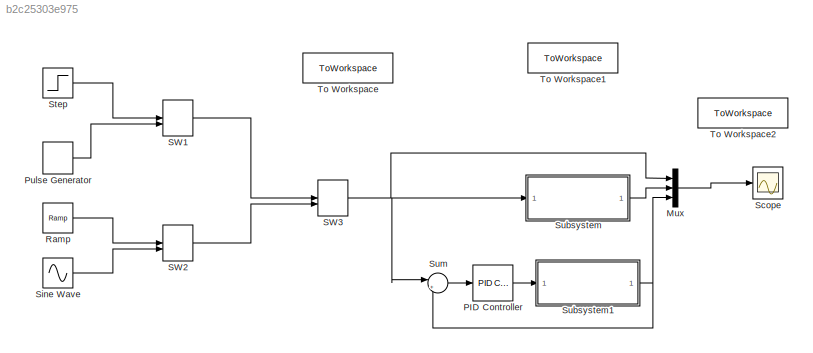
MODEL slx_b2c25303e975
KIND model
CONFIG AbsTol = auto
CONFIG EnableMultiTasking = off
CONFIG FixedStep = auto
CONFIG MaxStep = auto
CONFIG MinStep = auto
CONFIG RelTol = 1e-3
CONFIG SampleTimeConstraint = Unconstrained
CONFIG SolverName = VariableStepAuto
CONFIG StartTime = 0.0
CONFIG StopTime = 10.0
BLOCK [Mux] Mux
  DisplayOption = bar
  Inputs = 3
BLOCK [Reference] PID Controller  REF=slpidlib/PID Controller
  LibrarySourceBlock = simulink/Continuous/PID Controller
  SourceBlock = slpidlib/PID Controller
  SourceType = PID 1dof
BLOCK [DiscretePulseGenerator] Pulse Generator
  Period = 10
  PhaseDelay = 1
  PulseType = Time based
  PulseWidth = 10
BLOCK [Reference] Ramp  REF=simulink/Sources/Ramp
  SourceBlock = simulink/Sources/Ramp
  SourceType = Ramp
BLOCK [ManualSwitch] SW1
BLOCK [ManualSwitch] SW2
BLOCK [ManualSwitch] SW3
BLOCK [Scope] Scope
  Floating = off
  NumInputPorts = 1
  ScopeSpecificationString = Simulink.scopes.TimeScopeBlockCfg('CurrentConfiguration', extmgr.ConfigurationSet(extmgr.Configuration('Core','General UI',true),extmgr.Configuration('Core','Source UI',true),extmgr.Configuration('Sources','WiredSimulink',true),extmgr.Configuration('Visuals','Time Domain',true,'SerializedDisplays',{struct('MinYLimReal','0.0625','MaxYLimReal','1.10417','YLabelReal','','MinYLimMag','0.0625','MaxYLim...<+1329ch>
BLOCK [Sin] Sine Wave
  Frequency = 1.5708
  Phase = 0.001
  SampleTime = 0
  TimeSource = Use external signal
BLOCK [Step] Step
  SampleTime = 0.001
  Time = 0
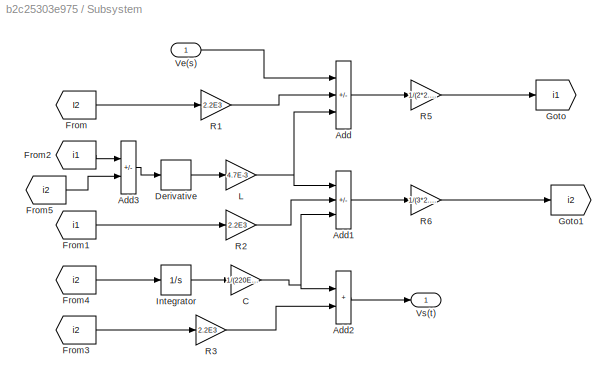
BLOCK [SubSystem] Subsystem
BLOCK [Sum] Subsystem/Add
  IconShape = rectangular
  Inputs = ++-
BLOCK [Sum] Subsystem/Add1
  IconShape = rectangular
  Inputs = ++-
BLOCK [Sum] Subsystem/Add2
  IconShape = rectangular
BLOCK [Sum] Subsystem/Add3
  IconShape = rectangular
  Inputs = +-
BLOCK [Gain] Subsystem/C
  Gain = 1/(220E-6)
BLOCK [Derivative] Subsystem/Derivative
BLOCK [From] Subsystem/From
  GotoTag = I2
BLOCK [From] Subsystem/From1
  GotoTag = i1
BLOCK [From] Subsystem/From2
  GotoTag = i1
BLOCK [From] Subsystem/From3
  GotoTag = i2
BLOCK [From] Subsystem/From4
  GotoTag = i2
BLOCK [From] Subsystem/From5
  GotoTag = i2
BLOCK [Goto] Subsystem/Goto
  GotoTag = i1
BLOCK [Goto] Subsystem/Goto1
  GotoTag = i2
BLOCK [Integrator] Subsystem/Integrator
BLOCK [Gain] Subsystem/L
  Gain = 4.7E-3
BLOCK [Gain] Subsystem/R1
  Gain = 2.2E3
BLOCK [Gain] Subsystem/R2
  Gain = 2.2E3
BLOCK [Gain] Subsystem/R3
  Gain = 2.2E3
BLOCK [Gain] Subsystem/R5
  Gain = 1/(2*2.2E3)
BLOCK [Gain] Subsystem/R6
  Gain = 1/(3*2.2E3)
BLOCK [Inport] Subsystem/Ve(s)
BLOCK [Outport] Subsystem/Vs(t)
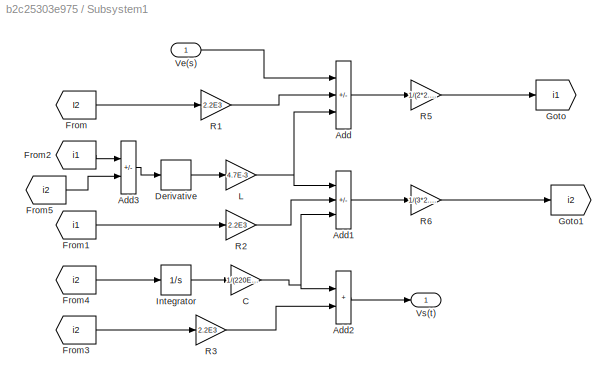
BLOCK [SubSystem] Subsystem1
BLOCK [Sum] Subsystem1/Add
  IconShape = rectangular
  Inputs = ++-
BLOCK [Sum] Subsystem1/Add1
  IconShape = rectangular
  Inputs = ++-
BLOCK [Sum] Subsystem1/Add2
  IconShape = rectangular
BLOCK [Sum] Subsystem1/Add3
  IconShape = rectangular
  Inputs = +-
BLOCK [Gain] Subsystem1/C
  Gain = 1/(220E-6)
BLOCK [Derivative] Subsystem1/Derivative
BLOCK [From] Subsystem1/From
  GotoTag = I2
BLOCK [From] Subsystem1/From1
  GotoTag = i1
BLOCK [From] Subsystem1/From2
  GotoTag = i1
BLOCK [From] Subsystem1/From3
  GotoTag = i2
BLOCK [From] Subsystem1/From4
  GotoTag = i2
BLOCK [From] Subsystem1/From5
  GotoTag = i2
BLOCK [Goto] Subsystem1/Goto
  GotoTag = i1
BLOCK [Goto] Subsystem1/Goto1
  GotoTag = i2
BLOCK [Integrator] Subsystem1/Integrator
BLOCK [Gain] Subsystem1/L
  Gain = 4.7E-3
BLOCK [Gain] Subsystem1/R1
  Gain = 2.2E3
BLOCK [Gain] Subsystem1/R2
  Gain = 2.2E3
BLOCK [Gain] Subsystem1/R3
  Gain = 2.2E3
BLOCK [Gain] Subsystem1/R5
  Gain = 1/(2*2.2E3)
BLOCK [Gain] Subsystem1/R6
  Gain = 1/(3*2.2E3)
BLOCK [Inport] Subsystem1/Ve(s)
BLOCK [Outport] Subsystem1/Vs(t)
BLOCK [Sum] Sum
  Inputs = |+-
BLOCK [ToWorkspace] To Workspace
  FixptAsFi = on
  MaxDataPoints = inf
  SampleTime = -1
  SaveFormat = Timeseries
  VariableName = simout
BLOCK [ToWorkspace] To Workspace1
  FixptAsFi = on
  MaxDataPoints = inf
  SampleTime = -1
  SaveFormat = Timeseries
  VariableName = simout1
BLOCK [ToWorkspace] To Workspace2
  FixptAsFi = on
  MaxDataPoints = inf
  SampleTime = -1
  SaveFormat = Timeseries
  VariableName = simout2
LINE Mux:1 -> Scope:1
LINE PID Controller:1 -> Subsystem1:1
LINE Pulse Generator:1 -> SW1:2
LINE Ramp:1 -> SW2:1
LINE SW1:1 -> SW3:1
LINE SW2:1 -> SW3:2
NET SW3:1 -> Mux:1, Subsystem:1, Sum:1
LINE Sine Wave:1 -> SW2:2
LINE Step:1 -> SW1:1
LINE Subsystem/Add1:1 -> Subsystem/R6:1
LINE Subsystem/Add2:1 -> Subsystem/Vs(t):1
LINE Subsystem/Add3:1 -> Subsystem/Derivative:1
LINE Subsystem/Add:1 -> Subsystem/R5:1
NET Subsystem/C:1 -> Subsystem/Add1:3, Subsystem/Add2:1
LINE Subsystem/Derivative:1 -> Subsystem/L:1
LINE Subsystem/From1:1 -> Subsystem/R2:1
LINE Subsystem/From2:1 -> Subsystem/Add3:1
LINE Subsystem/From3:1 -> Subsystem/R3:1
LINE Subsystem/From4:1 -> Subsystem/Integrator:1
LINE Subsystem/From5:1 -> Subsystem/Add3:2
LINE Subsystem/From:1 -> Subsystem/R1:1
LINE Subsystem/Integrator:1 -> Subsystem/C:1
NET Subsystem/L:1 -> Subsystem/Add1:1, Subsystem/Add:3
LINE Subsystem/R1:1 -> Subsystem/Add:2
LINE Subsystem/R2:1 -> Subsystem/Add1:2
LINE Subsystem/R3:1 -> Subsystem/Add2:2
LINE Subsystem/R5:1 -> Subsystem/Goto:1
LINE Subsystem/R6:1 -> Subsystem/Goto1:1
LINE Subsystem/Ve(s):1 -> Subsystem/Add:1
LINE Subsystem1/Add1:1 -> Subsystem1/R6:1
LINE Subsystem1/Add2:1 -> Subsystem1/Vs(t):1
LINE Subsystem1/Add3:1 -> Subsystem1/Derivative:1
LINE Subsystem1/Add:1 -> Subsystem1/R5:1
NET Subsystem1/C:1 -> Subsystem1/Add1:3, Subsystem1/Add2:1
LINE Subsystem1/Derivative:1 -> Subsystem1/L:1
LINE Subsystem1/From1:1 -> Subsystem1/R2:1
LINE Subsystem1/From2:1 -> Subsystem1/Add3:1
LINE Subsystem1/From3:1 -> Subsystem1/R3:1
LINE Subsystem1/From4:1 -> Subsystem1/Integrator:1
LINE Subsystem1/From5:1 -> Subsystem1/Add3:2
LINE Subsystem1/From:1 -> Subsystem1/R1:1
LINE Subsystem1/Integrator:1 -> Subsystem1/C:1
NET Subsystem1/L:1 -> Subsystem1/Add1:1, Subsystem1/Add:3
LINE Subsystem1/R1:1 -> Subsystem1/Add:2
LINE Subsystem1/R2:1 -> Subsystem1/Add1:2
LINE Subsystem1/R3:1 -> Subsystem1/Add2:2
LINE Subsystem1/R5:1 -> Subsystem1/Goto:1
LINE Subsystem1/R6:1 -> Subsystem1/Goto1:1
LINE Subsystem1/Ve(s):1 -> Subsystem1/Add:1
NET Subsystem1:1 -> Mux:3, Sum:2
LINE Subsystem:1 -> Mux:2
LINE Sum:1 -> PID Controller:1
note: NET lines group one-source signal fan-out (src -> all destinations, sorted); 1:1 wires keep LINE
